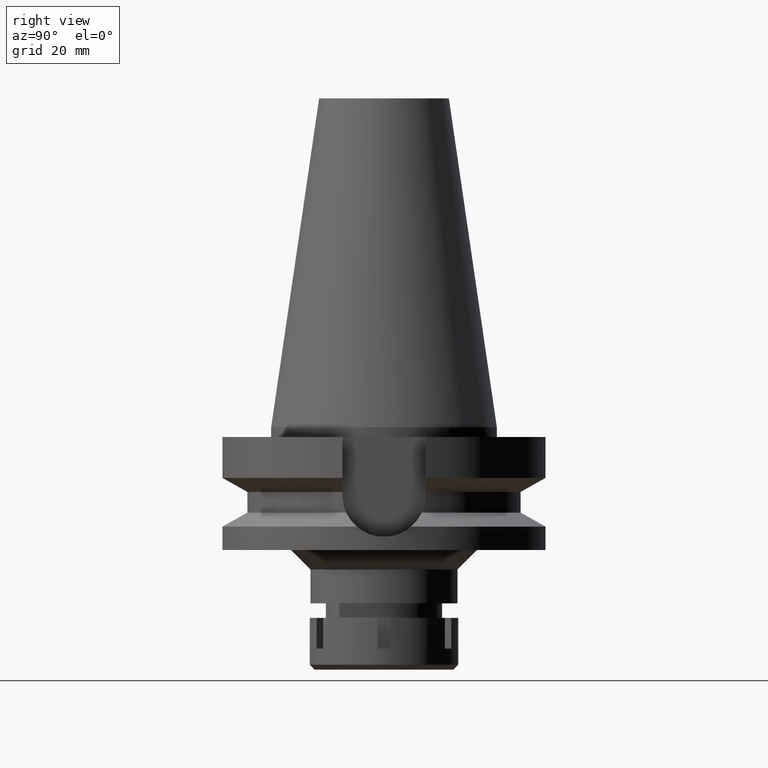
[diagram: clean part render]
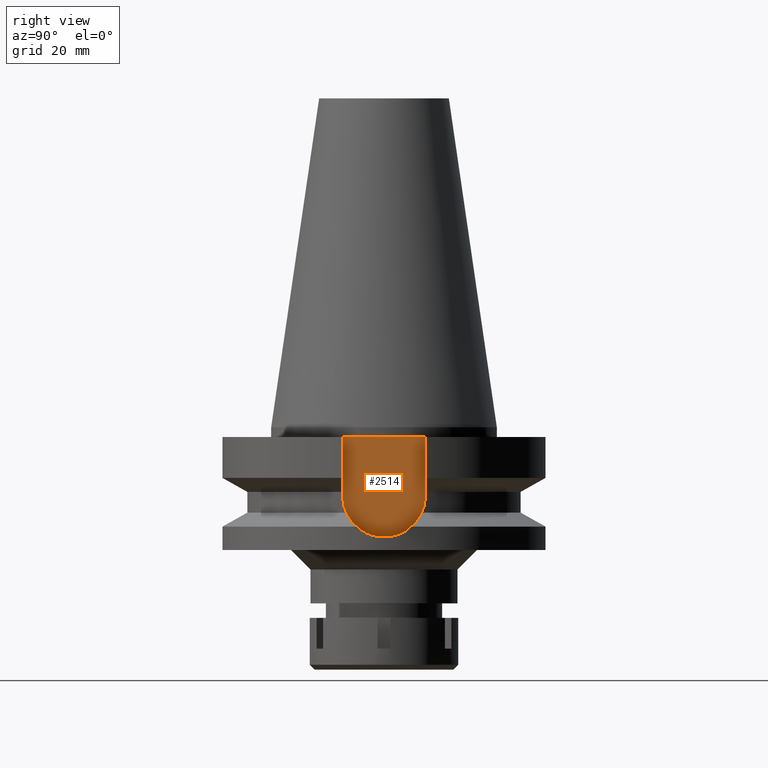
[diagram: same view with one face highlighted and labeled with its STEP entity id]
A machine part, right view. The second image highlights one B-rep face of the part: STEP entity #2514.
In plain terms, the highlighted planar face has unit normal (1, 0, 0).
Its self-contained STEP definition (entity closure, byte-faithful):
#77 = DIRECTION ( 'NONE',  ( 1.000000000000000000, 0.0000000000000000000, 0.0000000000000000000 ) ) ;
#118 = CARTESIAN_POINT ( 'NONE',  ( 35.39999999999999858, 12.84999999999999964, -3.000000000000000000 ) ) ;
#222 = CARTESIAN_POINT ( 'NONE',  ( 35.39999999999999858, -12.84999999999999964, -21.14999999999999858 ) ) ;
#324 = AXIS2_PLACEMENT_3D ( 'NONE', #810, #3546, #2449 ) ;
#436 = LINE ( 'NONE', #118, #723 ) ;
#465 = CARTESIAN_POINT ( 'NONE',  ( 35.39999999999999858, 12.84999999999999964, -3.000000000000000000 ) ) ;
#597 = CARTESIAN_POINT ( 'NONE',  ( 35.39999999999999858, 12.84999999999999964, -21.14999999999999858 ) ) ;
#623 = FACE_OUTER_BOUND ( 'NONE', #1896, .T. ) ;
#723 = VECTOR ( 'NONE', #3475, 1000.000000000000000 ) ;
#780 = EDGE_CURVE ( 'NONE', #1956, #1244, #2528, .T. ) ;
#810 = CARTESIAN_POINT ( 'NONE',  ( 35.39999999999999858, 0.0000000000000000000, -21.14999999999999858 ) ) ;
#844 = CARTESIAN_POINT ( 'NONE',  ( 35.39999999999999858, 0.0000000000000000000, 0.0000000000000000000 ) ) ;
#933 = ORIENTED_EDGE ( 'NONE', *, *, #780, .F. ) ;
#1077 = VECTOR ( 'NONE', #1945, 1000.000000000000000 ) ;
#1104 = VERTEX_POINT ( 'NONE', #465 ) ;
#1244 = VERTEX_POINT ( 'NONE', #2473 ) ;
#1338 = CARTESIAN_POINT ( 'NONE',  ( 35.39999999999999858, -12.84999999999999964, -21.14999999999999858 ) ) ;
#1433 = CIRCLE ( 'NONE', #324, 12.84999999999999964 ) ;
#1453 = VERTEX_POINT ( 'NONE', #597 ) ;
#1508 = VECTOR ( 'NONE', #3298, 1000.000000000000000 ) ;
#1665 = AXIS2_PLACEMENT_3D ( 'NONE', #844, #77, #1969 ) ;
#1671 = PLANE ( 'NONE',  #1665 ) ;
#1831 = ORIENTED_EDGE ( 'NONE', *, *, #2334, .F. ) ;
#1859 = LINE ( 'NONE', #3026, #1508 ) ;
#1896 = EDGE_LOOP ( 'NONE', ( #933, #1831, #2272, #3051 ) ) ;
#1945 = DIRECTION ( 'NONE',  ( 0.0000000000000000000, 0.0000000000000000000, 1.000000000000000000 ) ) ;
#1956 = VERTEX_POINT ( 'NONE', #222 ) ;
#1969 = DIRECTION ( 'NONE',  ( 0.0000000000000000000, 1.000000000000000000, 0.0000000000000000000 ) ) ;
#2202 = EDGE_CURVE ( 'NONE', #1104, #1244, #436, .T. ) ;
#2272 = ORIENTED_EDGE ( 'NONE', *, *, #2902, .F. ) ;
#2334 = EDGE_CURVE ( 'NONE', #1453, #1956, #1433, .T. ) ;
#2449 = DIRECTION ( 'NONE',  ( 0.0000000000000000000, 1.000000000000000000, 0.0000000000000000000 ) ) ;
#2473 = CARTESIAN_POINT ( 'NONE',  ( 35.39999999999999858, -12.84999999999999964, -3.000000000000000000 ) ) ;
#2514 = ADVANCED_FACE ( 'NONE', ( #623 ), #1671, .T. ) ;
#2528 = LINE ( 'NONE', #1338, #1077 ) ;
#2902 = EDGE_CURVE ( 'NONE', #1104, #1453, #1859, .T. ) ;
#3026 = CARTESIAN_POINT ( 'NONE',  ( 35.39999999999999858, 12.84999999999999964, -3.000000000000000000 ) ) ;
#3051 = ORIENTED_EDGE ( 'NONE', *, *, #2202, .T. ) ;
#3298 = DIRECTION ( 'NONE',  ( 0.0000000000000000000, 0.0000000000000000000, -1.000000000000000000 ) ) ;
#3475 = DIRECTION ( 'NONE',  ( 0.0000000000000000000, -1.000000000000000000, 0.0000000000000000000 ) ) ;
#3546 = DIRECTION ( 'NONE',  ( -1.000000000000000000, 0.0000000000000000000, 0.0000000000000000000 ) ) ;